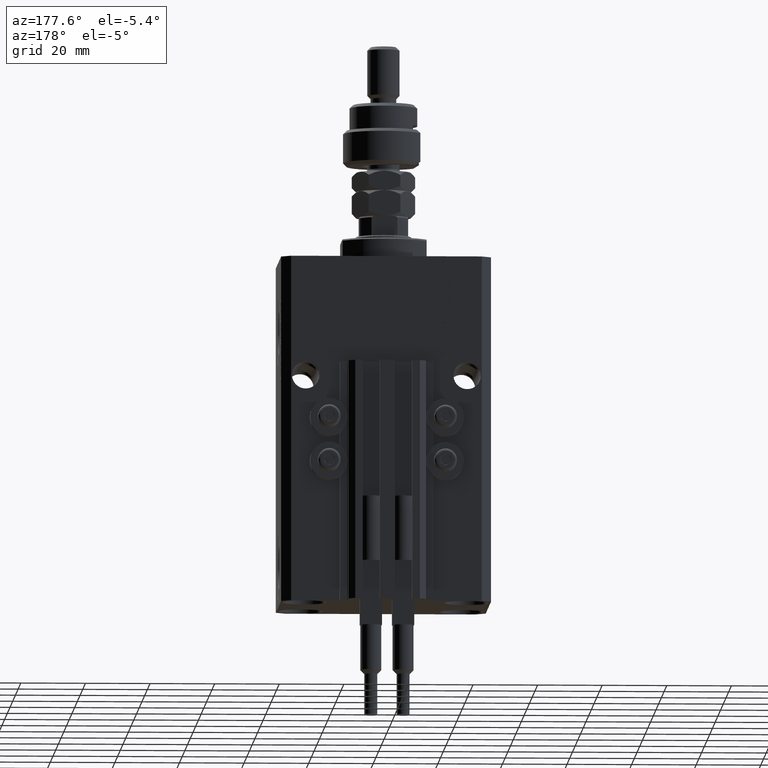
[diagram: clean part render]
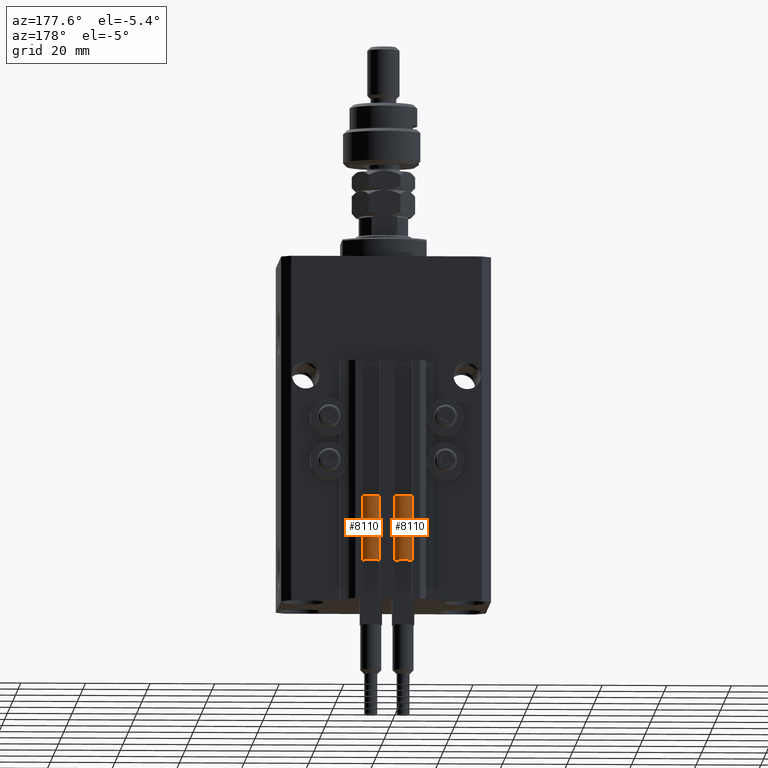
[diagram: same view with one multi-face feature highlighted, each face labeled with its STEP entity id]
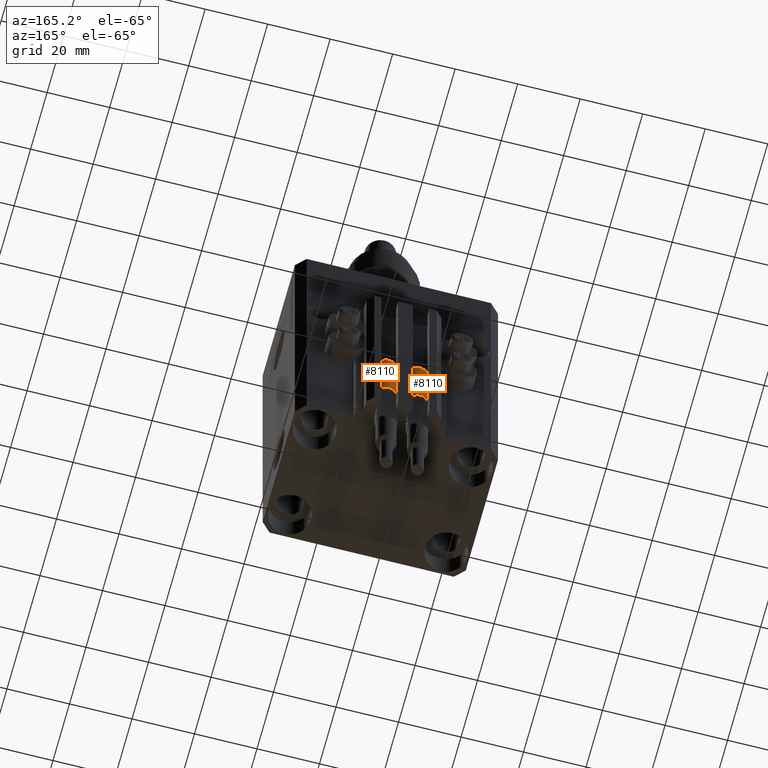
[diagram: same view with one multi-face feature highlighted, each face labeled with its STEP entity id]
A machine part, auxiliary view. The highlighted faces form ONE feature: a constant-radius fillet chain: 2 tangent blend faces with common blend radius 3.4 mm. The faces share edges in the B-rep.
A second angle (auxiliary view) of the same feature is appended — it is thin or edge-on in the first view.
Their STEP definitions:
[1] entity #8110 (Cylinder):
#2111 = CARTESIAN_POINT ( 'NONE',  ( 0.000000000000000000, 0.000000000000000000, 20.00000000000000000 ) ) ;
#2146 = CIRCLE ( 'NONE', #46488, 3.400000000000000355 ) ;
#3565 = CARTESIAN_POINT ( 'NONE',  ( -3.400000000000000355, 0.000000000000000000, 20.00000000000000000 ) ) ;
#4445 = VERTEX_POINT ( 'NONE', #17880 ) ;
#7167 = CARTESIAN_POINT ( 'NONE',  ( 3.051229260478471428, 1.500000000000000000, 20.00000000000000000 ) ) ;
#7811 = VERTEX_POINT ( 'NONE', #16762 ) ;
#8110 = ADVANCED_FACE ( 'NONE', ( #35187 ), #31080, .T. ) ;
#9083 = CARTESIAN_POINT ( 'NONE',  ( 0.000000000000000000, 0.000000000000000000, 0.000000000000000000 ) ) ;
#9756 = VERTEX_POINT ( 'NONE', #7167 ) ;
#10568 = AXIS2_PLACEMENT_3D ( 'NONE', #27221, #39557, #19500 ) ;
#10921 = DIRECTION ( 'NONE',  ( 1.000000000000000000, 0.000000000000000000, 0.000000000000000000 ) ) ;
#13417 = ORIENTED_EDGE ( 'NONE', *, *, #29888, .T. ) ;
#13674 = ORIENTED_EDGE ( 'NONE', *, *, #23933, .F. ) ;
#14073 = VERTEX_POINT ( 'NONE', #26504 ) ;
#14851 = VERTEX_POINT ( 'NONE', #41082 ) ;
#14897 = CIRCLE ( 'NONE', #20637, 3.400000000000000355 ) ;
#16762 = CARTESIAN_POINT ( 'NONE',  ( -3.051229260478471428, 1.500000000000000000, 20.00000000000000000 ) ) ;
#17880 = CARTESIAN_POINT ( 'NONE',  ( 3.400000000000000355, 0.000000000000000000, 20.00000000000000000 ) ) ;
#17954 = AXIS2_PLACEMENT_3D ( 'NONE', #50746, #42531, #10921 ) ;
#19500 = DIRECTION ( 'NONE',  ( -1.000000000000000000, 0.000000000000000000, 0.000000000000000000 ) ) ;
#20637 = AXIS2_PLACEMENT_3D ( 'NONE', #2111, #30406, #46076 ) ;
#20676 = DIRECTION ( 'NONE',  ( 1.000000000000000000, 0.000000000000000000, 0.000000000000000000 ) ) ;
#23682 = CIRCLE ( 'NONE', #26138, 3.400000000000000355 ) ;
#23933 = EDGE_CURVE ( 'NONE', #7811, #41143, #31959, .T. ) ;
#25856 = EDGE_CURVE ( 'NONE', #4445, #9756, #23682, .T. ) ;
#26138 = AXIS2_PLACEMENT_3D ( 'NONE', #30018, #46210, #26425 ) ;
#26425 = DIRECTION ( 'NONE',  ( 1.000000000000000000, 0.000000000000000000, 0.000000000000000000 ) ) ;
#26504 = CARTESIAN_POINT ( 'NONE',  ( -3.400000000000000355, 0.000000000000000000, 0.000000000000000000 ) ) ;
#27221 = CARTESIAN_POINT ( 'NONE',  ( 0.000000000000000000, 0.000000000000000000, 20.00000000000000000 ) ) ;
#27317 = ORIENTED_EDGE ( 'NONE', *, *, #37860, .T. ) ;
#29888 = EDGE_CURVE ( 'NONE', #4445, #14851, #39315, .T. ) ;
#30018 = CARTESIAN_POINT ( 'NONE',  ( 0.000000000000000000, 0.000000000000000000, 20.00000000000000000 ) ) ;
#30331 = DIRECTION ( 'NONE',  ( -0.000000000000000000, -0.000000000000000000, -1.000000000000000000 ) ) ;
#30406 = DIRECTION ( 'NONE',  ( 0.000000000000000000, 0.000000000000000000, 1.000000000000000000 ) ) ;
#31080 = CYLINDRICAL_SURFACE ( 'NONE', #10568, 3.400000000000000355 ) ;
#31959 = CIRCLE ( 'NONE', #17954, 3.400000000000000355 ) ;
#33033 = EDGE_CURVE ( 'NONE', #9756, #7811, #14897, .T. ) ;
#35187 = FACE_OUTER_BOUND ( 'NONE', #40707, .T. ) ;
#35209 = LINE ( 'NONE', #3565, #46786 ) ;
#37860 = EDGE_CURVE ( 'NONE', #14851, #14073, #2146, .T. ) ;
#38982 = ORIENTED_EDGE ( 'NONE', *, *, #25856, .F. ) ;
#39315 = LINE ( 'NONE', #41073, #43532 ) ;
#39557 = DIRECTION ( 'NONE',  ( -0.000000000000000000, -0.000000000000000000, -1.000000000000000000 ) ) ;
#40707 = EDGE_LOOP ( 'NONE', ( #38982, #13417, #27317, #41253, #13674, #50365 ) ) ;
#41073 = CARTESIAN_POINT ( 'NONE',  ( 3.400000000000000355, 4.163799117101001052E-16, 20.00000000000000000 ) ) ;
#41082 = CARTESIAN_POINT ( 'NONE',  ( 3.400000000000000355, 4.163799117101001052E-16, 0.000000000000000000 ) ) ;
#41143 = VERTEX_POINT ( 'NONE', #45406 ) ;
#41253 = ORIENTED_EDGE ( 'NONE', *, *, #48859, .F. ) ;
#42531 = DIRECTION ( 'NONE',  ( 0.000000000000000000, 0.000000000000000000, 1.000000000000000000 ) ) ;
#43532 = VECTOR ( 'NONE', #44651, 1000.000000000000000 ) ;
#44651 = DIRECTION ( 'NONE',  ( -0.000000000000000000, -0.000000000000000000, -1.000000000000000000 ) ) ;
#45406 = CARTESIAN_POINT ( 'NONE',  ( -3.399999999999999467, -4.915049848600952119E-16, 20.00000000000000000 ) ) ;
#46076 = DIRECTION ( 'NONE',  ( 1.000000000000000000, 0.000000000000000000, 0.000000000000000000 ) ) ;
#46210 = DIRECTION ( 'NONE',  ( 0.000000000000000000, 0.000000000000000000, 1.000000000000000000 ) ) ;
#46488 = AXIS2_PLACEMENT_3D ( 'NONE', #9083, #48161, #20676 ) ;
#46786 = VECTOR ( 'NONE', #30331, 1000.000000000000000 ) ;
#48161 = DIRECTION ( 'NONE',  ( 0.000000000000000000, 0.000000000000000000, 1.000000000000000000 ) ) ;
#48859 = EDGE_CURVE ( 'NONE', #41143, #14073, #35209, .T. ) ;
#50365 = ORIENTED_EDGE ( 'NONE', *, *, #33033, .F. ) ;
#50746 = CARTESIAN_POINT ( 'NONE',  ( 0.000000000000000000, 0.000000000000000000, 20.00000000000000000 ) ) ;
[2] entity #8110 (Cylinder):
#2111 = CARTESIAN_POINT ( 'NONE',  ( 0.000000000000000000, 0.000000000000000000, 20.00000000000000000 ) ) ;
#2146 = CIRCLE ( 'NONE', #46488, 3.400000000000000355 ) ;
#3565 = CARTESIAN_POINT ( 'NONE',  ( -3.400000000000000355, 0.000000000000000000, 20.00000000000000000 ) ) ;
#4445 = VERTEX_POINT ( 'NONE', #17880 ) ;
#7167 = CARTESIAN_POINT ( 'NONE',  ( 3.051229260478471428, 1.500000000000000000, 20.00000000000000000 ) ) ;
#7811 = VERTEX_POINT ( 'NONE', #16762 ) ;
#8110 = ADVANCED_FACE ( 'NONE', ( #35187 ), #31080, .T. ) ;
#9083 = CARTESIAN_POINT ( 'NONE',  ( 0.000000000000000000, 0.000000000000000000, 0.000000000000000000 ) ) ;
#9756 = VERTEX_POINT ( 'NONE', #7167 ) ;
#10568 = AXIS2_PLACEMENT_3D ( 'NONE', #27221, #39557, #19500 ) ;
#10921 = DIRECTION ( 'NONE',  ( 1.000000000000000000, 0.000000000000000000, 0.000000000000000000 ) ) ;
#13417 = ORIENTED_EDGE ( 'NONE', *, *, #29888, .T. ) ;
#13674 = ORIENTED_EDGE ( 'NONE', *, *, #23933, .F. ) ;
#14073 = VERTEX_POINT ( 'NONE', #26504 ) ;
#14851 = VERTEX_POINT ( 'NONE', #41082 ) ;
#14897 = CIRCLE ( 'NONE', #20637, 3.400000000000000355 ) ;
#16762 = CARTESIAN_POINT ( 'NONE',  ( -3.051229260478471428, 1.500000000000000000, 20.00000000000000000 ) ) ;
#17880 = CARTESIAN_POINT ( 'NONE',  ( 3.400000000000000355, 0.000000000000000000, 20.00000000000000000 ) ) ;
#17954 = AXIS2_PLACEMENT_3D ( 'NONE', #50746, #42531, #10921 ) ;
#19500 = DIRECTION ( 'NONE',  ( -1.000000000000000000, 0.000000000000000000, 0.000000000000000000 ) ) ;
#20637 = AXIS2_PLACEMENT_3D ( 'NONE', #2111, #30406, #46076 ) ;
#20676 = DIRECTION ( 'NONE',  ( 1.000000000000000000, 0.000000000000000000, 0.000000000000000000 ) ) ;
#23682 = CIRCLE ( 'NONE', #26138, 3.400000000000000355 ) ;
#23933 = EDGE_CURVE ( 'NONE', #7811, #41143, #31959, .T. ) ;
#25856 = EDGE_CURVE ( 'NONE', #4445, #9756, #23682, .T. ) ;
#26138 = AXIS2_PLACEMENT_3D ( 'NONE', #30018, #46210, #26425 ) ;
#26425 = DIRECTION ( 'NONE',  ( 1.000000000000000000, 0.000000000000000000, 0.000000000000000000 ) ) ;
#26504 = CARTESIAN_POINT ( 'NONE',  ( -3.400000000000000355, 0.000000000000000000, 0.000000000000000000 ) ) ;
#27221 = CARTESIAN_POINT ( 'NONE',  ( 0.000000000000000000, 0.000000000000000000, 20.00000000000000000 ) ) ;
#27317 = ORIENTED_EDGE ( 'NONE', *, *, #37860, .T. ) ;
#29888 = EDGE_CURVE ( 'NONE', #4445, #14851, #39315, .T. ) ;
#30018 = CARTESIAN_POINT ( 'NONE',  ( 0.000000000000000000, 0.000000000000000000, 20.00000000000000000 ) ) ;
#30331 = DIRECTION ( 'NONE',  ( -0.000000000000000000, -0.000000000000000000, -1.000000000000000000 ) ) ;
#30406 = DIRECTION ( 'NONE',  ( 0.000000000000000000, 0.000000000000000000, 1.000000000000000000 ) ) ;
#31080 = CYLINDRICAL_SURFACE ( 'NONE', #10568, 3.400000000000000355 ) ;
#31959 = CIRCLE ( 'NONE', #17954, 3.400000000000000355 ) ;
#33033 = EDGE_CURVE ( 'NONE', #9756, #7811, #14897, .T. ) ;
#35187 = FACE_OUTER_BOUND ( 'NONE', #40707, .T. ) ;
#35209 = LINE ( 'NONE', #3565, #46786 ) ;
#37860 = EDGE_CURVE ( 'NONE', #14851, #14073, #2146, .T. ) ;
#38982 = ORIENTED_EDGE ( 'NONE', *, *, #25856, .F. ) ;
#39315 = LINE ( 'NONE', #41073, #43532 ) ;
#39557 = DIRECTION ( 'NONE',  ( -0.000000000000000000, -0.000000000000000000, -1.000000000000000000 ) ) ;
#40707 = EDGE_LOOP ( 'NONE', ( #38982, #13417, #27317, #41253, #13674, #50365 ) ) ;
#41073 = CARTESIAN_POINT ( 'NONE',  ( 3.400000000000000355, 4.163799117101001052E-16, 20.00000000000000000 ) ) ;
#41082 = CARTESIAN_POINT ( 'NONE',  ( 3.400000000000000355, 4.163799117101001052E-16, 0.000000000000000000 ) ) ;
#41143 = VERTEX_POINT ( 'NONE', #45406 ) ;
#41253 = ORIENTED_EDGE ( 'NONE', *, *, #48859, .F. ) ;
#42531 = DIRECTION ( 'NONE',  ( 0.000000000000000000, 0.000000000000000000, 1.000000000000000000 ) ) ;
#43532 = VECTOR ( 'NONE', #44651, 1000.000000000000000 ) ;
#44651 = DIRECTION ( 'NONE',  ( -0.000000000000000000, -0.000000000000000000, -1.000000000000000000 ) ) ;
#45406 = CARTESIAN_POINT ( 'NONE',  ( -3.399999999999999467, -4.915049848600952119E-16, 20.00000000000000000 ) ) ;
#46076 = DIRECTION ( 'NONE',  ( 1.000000000000000000, 0.000000000000000000, 0.000000000000000000 ) ) ;
#46210 = DIRECTION ( 'NONE',  ( 0.000000000000000000, 0.000000000000000000, 1.000000000000000000 ) ) ;
#46488 = AXIS2_PLACEMENT_3D ( 'NONE', #9083, #48161, #20676 ) ;
#46786 = VECTOR ( 'NONE', #30331, 1000.000000000000000 ) ;
#48161 = DIRECTION ( 'NONE',  ( 0.000000000000000000, 0.000000000000000000, 1.000000000000000000 ) ) ;
#48859 = EDGE_CURVE ( 'NONE', #41143, #14073, #35209, .T. ) ;
#50365 = ORIENTED_EDGE ( 'NONE', *, *, #33033, .F. ) ;
#50746 = CARTESIAN_POINT ( 'NONE',  ( 0.000000000000000000, 0.000000000000000000, 20.00000000000000000 ) ) ;